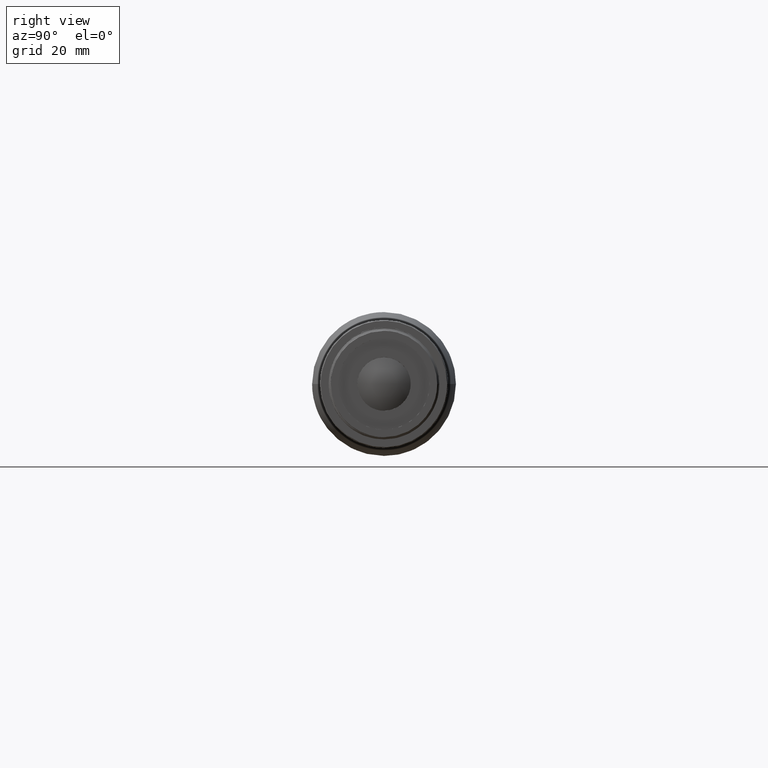
[diagram: clean part render]
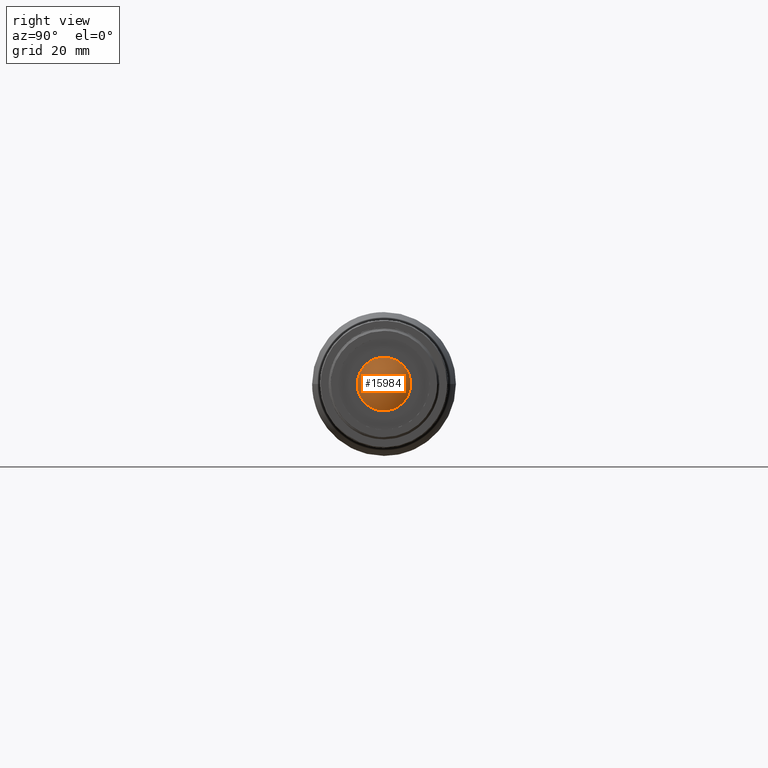
[diagram: same view with one face highlighted and labeled with its STEP entity id]
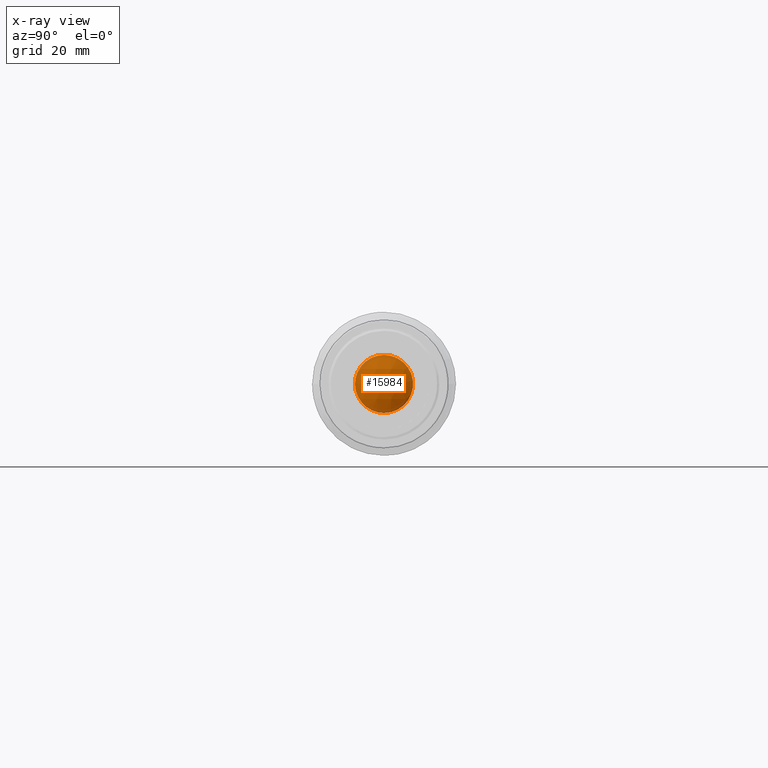
[diagram: x-ray of the same camera — body ghosted, the highlighted face saturated]
A machine part, right view. The second image highlights one B-rep face of the part: STEP entity #15984.
The next image is the same camera in x-ray: the body ghosted, the highlighted face saturated — about 0% of this face is hidden behind the body in this view.
In plain terms, the highlighted spherical surface has radius 13.94 mm.
Its self-contained STEP definition (entity closure, byte-faithful):
#119 = ORIENTED_EDGE ( 'NONE', *, *, #19980, .T. ) ;
#993 = CARTESIAN_POINT ( 'NONE',  ( 112.3997223338521962, -0.8733354197500937666, 6.671791152919405832 ) ) ;
#1236 = VERTEX_POINT ( 'NONE', #12831 ) ;
#3093 = CARTESIAN_POINT ( 'NONE',  ( 112.3997223338522105, -4.100127369675702127, 5.335210164182596415 ) ) ;
#3225 = CARTESIAN_POINT ( 'NONE',  ( 112.3997223339852098, -6.671791152956735971, -3.422097673974942776E-10 ) ) ;
#3354 = CARTESIAN_POINT ( 'NONE',  ( 112.3997223338521962, -5.335210164708198199, 4.100127368991633325 ) ) ;
#4580 = CARTESIAN_POINT ( 'NONE',  ( 112.3997223340000033, -2.508746965177033268E-09, -6.671791153000000918 ) ) ;
#6264 = CARTESIAN_POINT ( 'NONE',  ( 112.3997223338521252, -5.335210165074770750, -4.100127368451255805 ) ) ;
#7337 = DIRECTION ( 'NONE',  ( 0.000000000000000000, 2.409699664348714317E-16, 1.000000000000000000 ) ) ;
#8356 = FACE_OUTER_BOUND ( 'NONE', #24086, .T. ) ;
#8493 = AXIS2_PLACEMENT_3D ( 'NONE', #19071, #23239, #24816 ) ;
#8933 = CARTESIAN_POINT ( 'NONE',  ( 112.3997223338521962, -1.746327219305836342, 6.498142287352174584 ) ) ;
#9154 = CARTESIAN_POINT ( 'NONE',  ( 112.3997223340000033, -1.607701290198882324E-15, 8.597752635211737416E-16 ) ) ;
#10434 = EDGE_CURVE ( 'NONE', #19921, #23605, #22932, .T. ) ;
#11129 = DIRECTION ( 'NONE',  ( 1.000000000000000000, -0.000000000000000000, 0.000000000000000000 ) ) ;
#11288 = CARTESIAN_POINT ( 'NONE',  ( 112.3997223338522673, -5.829720295658905371, 3.360040657185880519 ) ) ;
#11645 = CARTESIAN_POINT ( 'NONE',  ( 112.3997223338522673, -6.671791153030977917, 0.8733354188945919860 ) ) ;
#12831 = CARTESIAN_POINT ( 'NONE',  ( 112.3997223340000033, -9.984803088904124661E-11, 6.671791153000000918 ) ) ;
#14214 = CARTESIAN_POINT ( 'NONE',  ( 112.3997223338521820, -0.8733354221877699386, -6.671791152561152849 ) ) ;
#14497 = SPHERICAL_SURFACE ( 'NONE', #8493, 13.93999999819130586 ) ;
#14541 = CARTESIAN_POINT ( 'NONE',  ( 112.3997223340000033, -2.508746965177033268E-09, -6.671791153000000918 ) ) ;
#14581 = ORIENTED_EDGE ( 'NONE', *, *, #15999, .T. ) ;
#15984 = ADVANCED_FACE ( 'NONE', ( #8356 ), #14497, .T. ) ;
#15999 = EDGE_CURVE ( 'NONE', #23605, #1236, #23894, .T. ) ;
#16309 = CARTESIAN_POINT ( 'NONE',  ( 112.3997223338521536, -3.360040659263628715, -5.829720294416857129 ) ) ;
#16708 = CARTESIAN_POINT ( 'NONE',  ( 112.3997223338521252, -6.498142287472636447, -1.746327218707920625 ) ) ;
#18263 = CARTESIAN_POINT ( 'NONE',  ( 112.3997223338521394, -4.100127370639739866, -5.335210163392933858 ) ) ;
#18649 = ORIENTED_EDGE ( 'NONE', *, *, #10434, .T. ) ;
#19071 = CARTESIAN_POINT ( 'NONE',  ( 100.1600000019771670, 2.474296278696216924E-13, 0.000000000000000000 ) ) ;
#19237 = CARTESIAN_POINT ( 'NONE',  ( 112.3997223338522673, -6.498142287575765508, 1.746327218472595089 ) ) ;
#19595 = CARTESIAN_POINT ( 'NONE',  ( 112.3997223339852098, -6.671791152956735971, -3.422097673974942776E-10 ) ) ;
#19892 = B_SPLINE_CURVE_WITH_KNOTS ( 'NONE', 3,
 ( #24718, #993, #8933, #20940, #3093, #3354, #11288, #19237, #11645, #19595 ),
 .UNSPECIFIED., .F., .F.,
 ( 4, 2, 2, 2, 4 ),
 ( 0.000000000000000000, 0.2500000000000001110, 0.5000000000000001110, 0.7500000000000001110, 1.000000000000000000 ),
 .UNSPECIFIED. ) ;
#19921 = VERTEX_POINT ( 'NONE', #3225 ) ;
#19980 = EDGE_CURVE ( 'NONE', #1236, #19921, #19892, .T. ) ;
#20357 = CARTESIAN_POINT ( 'NONE',  ( 112.3997223338521678, -1.746327221373474625, -6.498142286756339203 ) ) ;
#20940 = CARTESIAN_POINT ( 'NONE',  ( 112.3997223338521962, -3.360040657933387909, 5.829720295228259630 ) ) ;
#21805 = AXIS2_PLACEMENT_3D ( 'NONE', #9154, #11129, #7337 ) ;
#22706 = CARTESIAN_POINT ( 'NONE',  ( 112.3997223339852098, -6.671791152956735971, -3.422097673974942776E-10 ) ) ;
#22932 = B_SPLINE_CURVE_WITH_KNOTS ( 'NONE', 3,
 ( #22706, #24399, #16708, #24132, #6264, #18263, #16309, #20357, #14214, #4580 ),
 .UNSPECIFIED., .F., .F.,
 ( 4, 2, 2, 2, 4 ),
 ( 0.000000000000000000, 0.2500000000000000000, 0.5000000000000000000, 0.7500000000000000000, 1.000000000000000000 ),
 .UNSPECIFIED. ) ;
#23239 = DIRECTION ( 'NONE',  ( 1.040034639091951494E-15, 0.000000000000000000, -1.000000000000000000 ) ) ;
#23605 = VERTEX_POINT ( 'NONE', #14541 ) ;
#23894 = CIRCLE ( 'NONE', #21805, 6.671791153000000918 ) ;
#24086 = EDGE_LOOP ( 'NONE', ( #119, #18649, #14581 ) ) ;
#24132 = CARTESIAN_POINT ( 'NONE',  ( 112.3997223338521394, -5.829720295795103979, -3.360040656872288700 ) ) ;
#24399 = CARTESIAN_POINT ( 'NONE',  ( 112.3997223338520826, -6.671791152919335666, -0.8733354194509649338 ) ) ;
#24718 = CARTESIAN_POINT ( 'NONE',  ( 112.3997223340000033, -9.984803088904124661E-11, 6.671791153000000918 ) ) ;
#24816 = DIRECTION ( 'NONE',  ( 0.000000000000000000, -1.000000000000000000, 0.000000000000000000 ) ) ;